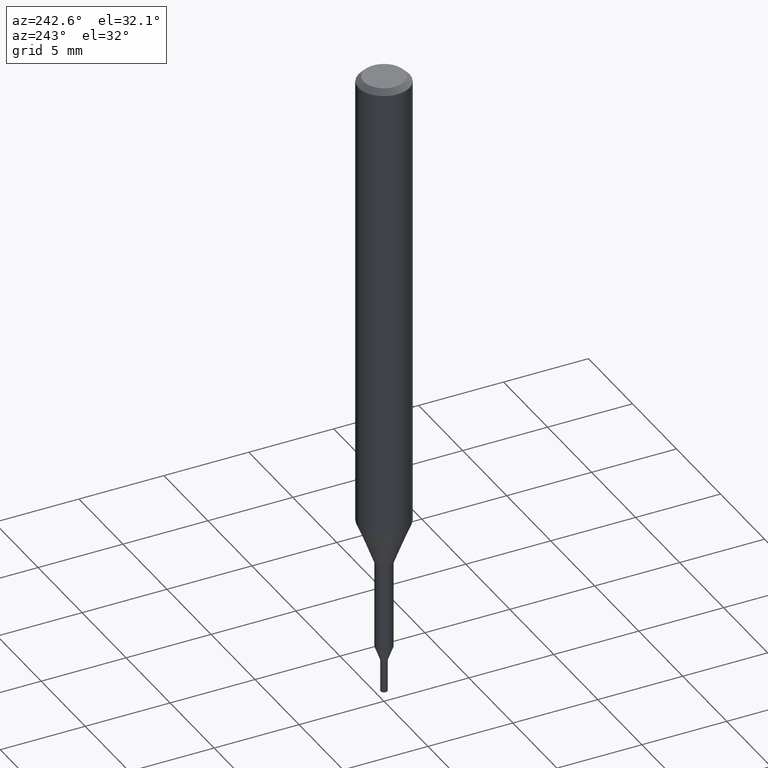
[diagram: clean part render]
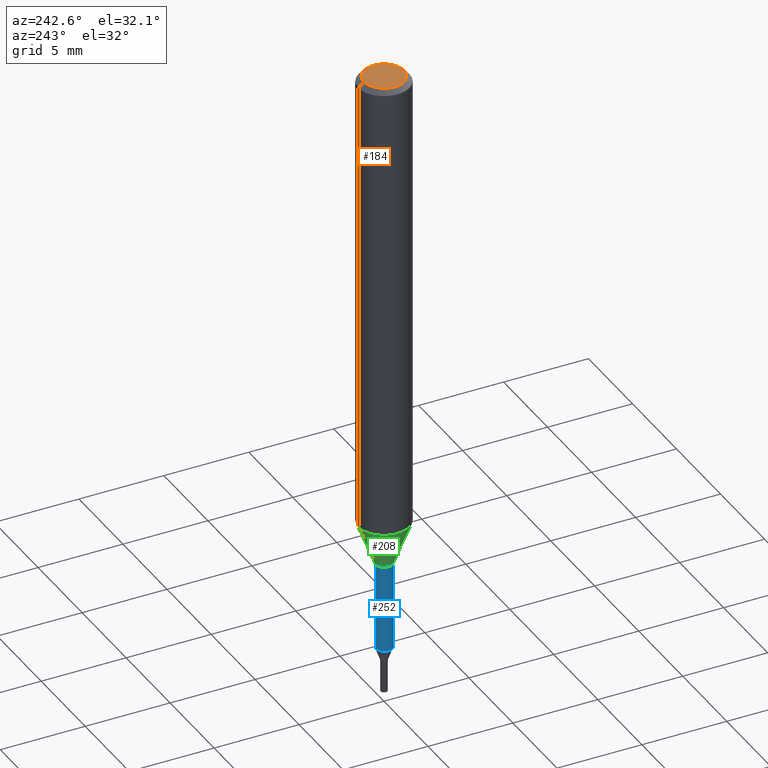
[diagram: same view with three faces highlighted in distinct colors, each labeled with its STEP entity id]
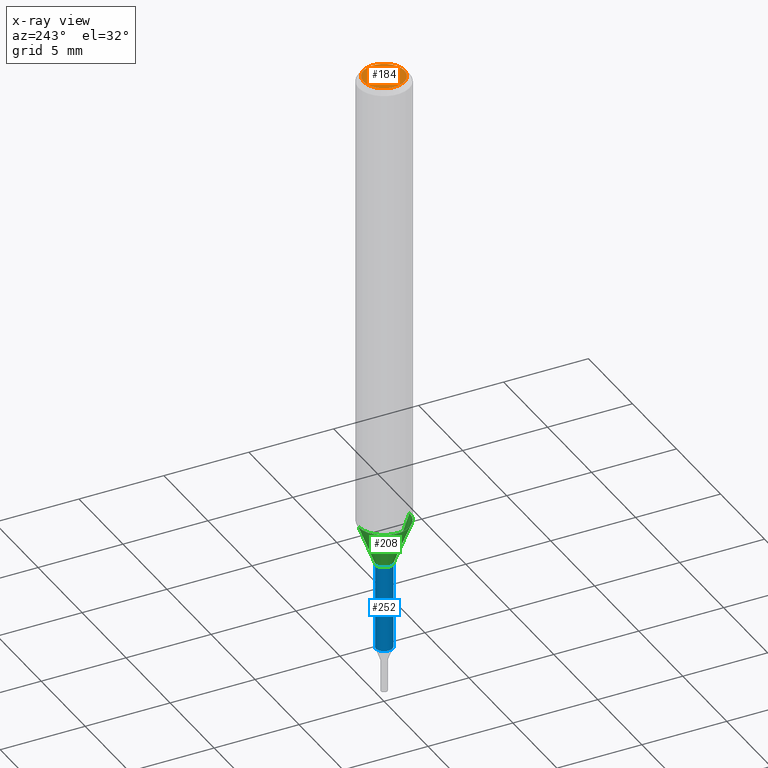
[diagram: x-ray of the same camera — body ghosted, the three highlighted faces saturated]
A machine part, auxiliary view with three faces highlighted in distinct colors.
The next image is the same camera in x-ray (body ghosted, the three faces saturated) — at least one of them is partly hidden behind the body in this view.
Their STEP definitions:

[orange] entity #184 — the highlighted planar face has unit normal (-0, 0, 1).
#164=VERTEX_POINT('',#348);
#184=ADVANCED_FACE('',(#370),#371,.T.);
#222=EDGE_CURVE('',#164,#228,#413,.T.);
#228=VERTEX_POINT('',#420);
#230=EDGE_CURVE('',#228,#164,#422,.T.);
#348=CARTESIAN_POINT('',(0.0,1.2,0.0));
#370=FACE_OUTER_BOUND('',#579,.T.);
#371=PLANE('',#580);
#413=CIRCLE('',#641,1.2);
#420=CARTESIAN_POINT('',(1.46952762458685E-016,-1.2,0.0));
#422=CIRCLE('',#651,1.2);
#579=EDGE_LOOP('',(#808,#809));
#580=AXIS2_PLACEMENT_3D('',#810,#811,#812);
#641=AXIS2_PLACEMENT_3D('',#863,#864,#865);
#651=AXIS2_PLACEMENT_3D('',#874,#875,#876);
#808=ORIENTED_EDGE('',*,*,#222,.F.);
#809=ORIENTED_EDGE('',*,*,#230,.F.);
#810=CARTESIAN_POINT('',(0.0,0.6,0.0));
#811=DIRECTION('',(-0.0,0.0,1.0));
#812=DIRECTION('',(0.0,-1.0,0.0));
#863=CARTESIAN_POINT('',(0.0,0.0,0.0));
#864=DIRECTION('',(0.0,0.0,-1.0));
#865=DIRECTION('',(0.0,1.0,0.0));
#874=CARTESIAN_POINT('',(0.0,0.0,0.0));
#875=DIRECTION('',(0.0,0.0,-1.0));
#876=DIRECTION('',(0.0,1.0,0.0));

[blue] entity #252 — the highlighted cylindrical surface (edge-blend (fillet) strip) has radius 0.5 mm, axis along (-0, -0, 1).
#144=VERTEX_POINT('',#327);
#150=EDGE_CURVE('',#186,#144,#333,.T.);
#186=VERTEX_POINT('',#373);
#188=EDGE_CURVE('',#258,#186,#375,.T.);
#190=EDGE_CURVE('',#224,#144,#377,.T.);
#224=VERTEX_POINT('',#415);
#246=EDGE_CURVE('',#224,#258,#441,.T.);
#252=ADVANCED_FACE('',(#449),#450,.T.);
#258=VERTEX_POINT('',#456);
#327=CARTESIAN_POINT('',(0.0,0.49995,-35.176));
#333=LINE('',#532,#533);
#373=CARTESIAN_POINT('',(0.0,0.49995,-30.0));
#375=CIRCLE('',#585,0.49995);
#377=CIRCLE('',#588,0.49995);
#415=CARTESIAN_POINT('',(6.12241946593498E-017,-0.49995,-35.176));
#441=LINE('',#675,#676);
#449=FACE_OUTER_BOUND('',#684,.T.);
#450=CYLINDRICAL_SURFACE('',#685,0.49995);
#456=CARTESIAN_POINT('',(6.12241946593498E-017,-0.49995,-30.0));
#532=CARTESIAN_POINT('',(-6.12241946593498E-017,0.49995,-32.588));
#533=VECTOR('',#769,1.0);
#585=AXIS2_PLACEMENT_3D('',#813,#814,#815);
#588=AXIS2_PLACEMENT_3D('',#816,#817,#818);
#675=CARTESIAN_POINT('',(6.12241946593498E-017,-0.49995,-32.588));
#676=VECTOR('',#904,1.0);
#684=EDGE_LOOP('',(#922,#923,#924,#925));
#685=AXIS2_PLACEMENT_3D('',#926,#927,#928);
#769=DIRECTION('',(0.0,0.0,-1.0));
#813=CARTESIAN_POINT('',(0.0,0.0,-30.0));
#814=DIRECTION('',(0.0,0.0,-1.0));
#815=DIRECTION('',(0.0,1.0,0.0));
#816=CARTESIAN_POINT('',(0.0,0.0,-35.176));
#817=DIRECTION('',(0.0,0.0,-1.0));
#818=DIRECTION('',(0.0,1.0,0.0));
#904=DIRECTION('',(-0.0,-0.0,1.0));
#922=ORIENTED_EDGE('',*,*,#150,.T.);
#923=ORIENTED_EDGE('',*,*,#190,.F.);
#924=ORIENTED_EDGE('',*,*,#246,.T.);
#925=ORIENTED_EDGE('',*,*,#188,.T.);
#926=CARTESIAN_POINT('',(0.0,0.0,-32.588));
#927=DIRECTION('',(-0.0,-0.0,1.0));
#928=DIRECTION('',(0.0,1.0,0.0));

[green] entity #208 — the highlighted conical surface has half-angle 21.001 deg.
#116=VERTEX_POINT('',#294);
#120=VERTEX_POINT('',#299);
#158=EDGE_CURVE('',#116,#176,#342,.T.);
#166=EDGE_CURVE('',#176,#120,#350,.T.);
#176=VERTEX_POINT('',#361);
#206=EDGE_CURVE('',#260,#120,#394,.T.);
#208=ADVANCED_FACE('',(#396),#397,.T.);
#260=VERTEX_POINT('',#458);
#266=EDGE_CURVE('',#260,#116,#464,.T.);
#294=CARTESIAN_POINT('',(1.83690953073357E-016,-1.5,-27.395));
#299=CARTESIAN_POINT('',(0.0,0.5,-30.0));
#342=CIRCLE('',#544,1.5);
#350=LINE('',#555,#556);
#361=CARTESIAN_POINT('',(0.0,1.5,-27.395));
#394=CIRCLE('',#616,0.5);
#396=FACE_OUTER_BOUND('',#618,.T.);
#397=CONICAL_SURFACE('',#619,1.0,0.366530581623394);
#458=CARTESIAN_POINT('',(6.12303176911189E-017,-0.5,-30.0));
#464=LINE('',#704,#705);
#544=AXIS2_PLACEMENT_3D('',#779,#780,#781);
#555=CARTESIAN_POINT('',(-1.22460635382238E-016,1.0,-28.6975));
#556=VECTOR('',#788,1.0);
#616=AXIS2_PLACEMENT_3D('',#832,#833,#834);
#618=EDGE_LOOP('',(#836,#837,#838,#839));
#619=AXIS2_PLACEMENT_3D('',#840,#841,#842);
#704=CARTESIAN_POINT('',(1.22460635382238E-016,-1.0,-28.6975));
#705=VECTOR('',#936,1.0);
#779=CARTESIAN_POINT('',(0.0,0.0,-27.395));
#780=DIRECTION('',(0.0,0.0,-1.0));
#781=DIRECTION('',(0.0,1.0,0.0));
#788=DIRECTION('',(4.38872745501645E-017,-0.35837862847256,-0.933576327171018));
#832=CARTESIAN_POINT('',(0.0,0.0,-30.0));
#833=DIRECTION('',(0.0,0.0,-1.0));
#834=DIRECTION('',(0.0,1.0,0.0));
#836=ORIENTED_EDGE('',*,*,#166,.T.);
#837=ORIENTED_EDGE('',*,*,#206,.F.);
#838=ORIENTED_EDGE('',*,*,#266,.T.);
#839=ORIENTED_EDGE('',*,*,#158,.T.);
#840=CARTESIAN_POINT('',(0.0,0.0,-28.6975));
#841=DIRECTION('',(-0.0,-0.0,1.0));
#842=DIRECTION('',(0.0,1.0,0.0));
#936=DIRECTION('',(4.38872745501645E-017,-0.35837862847256,0.933576327171018));